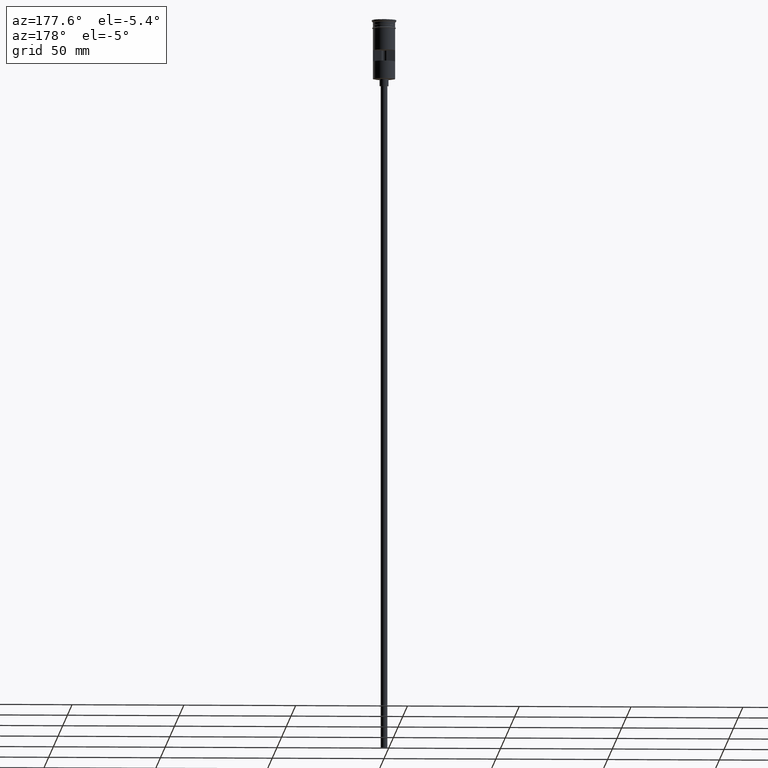
[diagram: clean part render]
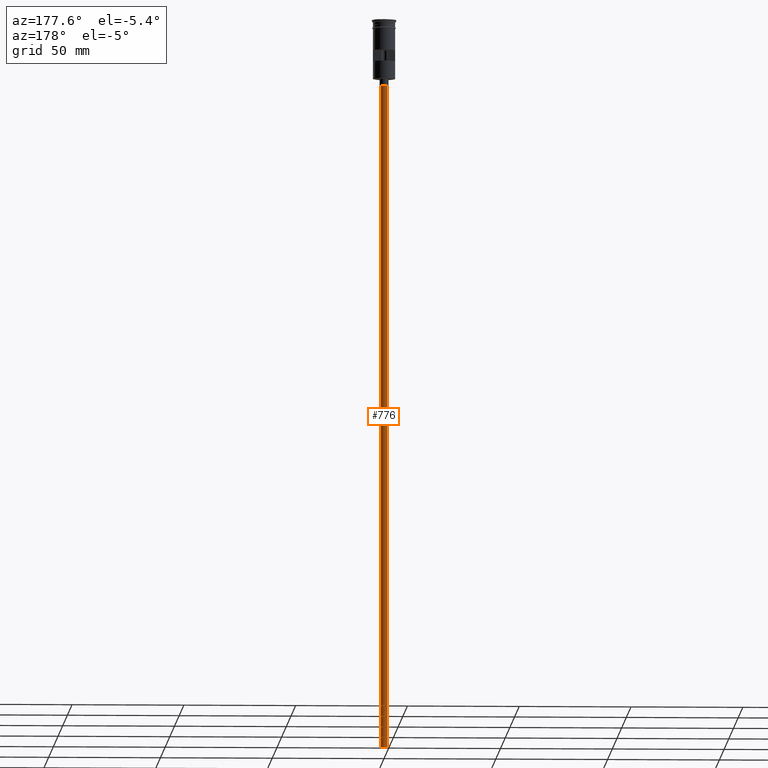
[diagram: same view with one face highlighted and labeled with its STEP entity id]
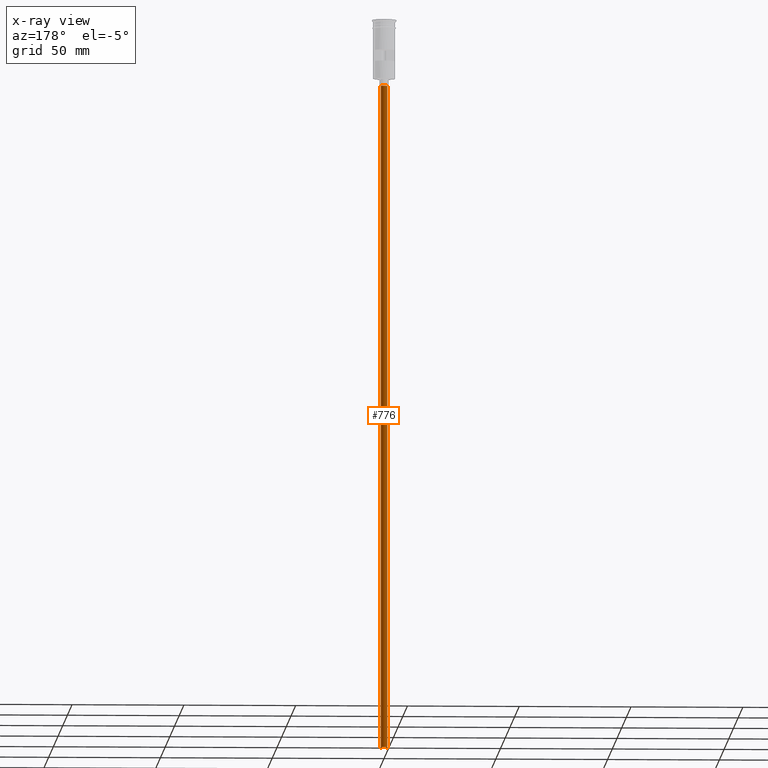
[diagram: x-ray of the same camera — body ghosted, the highlighted face saturated]
A machine part, auxiliary view. The second image highlights one B-rep face of the part: STEP entity #776.
The next image is the same camera in x-ray: the body ghosted, the highlighted face saturated — about 0% of this face is hidden behind the body in this view.
In plain terms, the highlighted cylindrical surface (edge-blend (fillet) strip) has radius 1.5 mm, axis along (-0, -0, 1).
Its self-contained STEP definition (entity closure, byte-faithful):
#17 = EDGE_CURVE ( 'NONE', #546, #990, #1414, .T. ) ;
#23 = DIRECTION ( 'NONE',  ( -0.000000000000000000, -0.000000000000000000, 1.000000000000000000 ) ) ;
#68 = CARTESIAN_POINT ( 'NONE',  ( 0.000000000000000000, 0.000000000000000000, -29.50000000000000000 ) ) ;
#240 = VERTEX_POINT ( 'NONE', #500 ) ;
#263 = ORIENTED_EDGE ( 'NONE', *, *, #352, .F. ) ;
#352 = EDGE_CURVE ( 'NONE', #1482, #240, #1040, .T. ) ;
#466 = DIRECTION ( 'NONE',  ( -1.000000000000000000, 0.000000000000000000, 0.000000000000000000 ) ) ;
#493 = DIRECTION ( 'NONE',  ( 0.000000000000000000, 0.000000000000000000, -1.000000000000000000 ) ) ;
#500 = CARTESIAN_POINT ( 'NONE',  ( 1.500000000000000222, 0.000000000000000000, -29.50000000000000000 ) ) ;
#523 = DIRECTION ( 'NONE',  ( -0.000000000000000000, -0.000000000000000000, 1.000000000000000000 ) ) ;
#546 = VERTEX_POINT ( 'NONE', #1085 ) ;
#560 = EDGE_CURVE ( 'NONE', #990, #240, #639, .T. ) ;
#639 = CIRCLE ( 'NONE', #1385, 1.500000000000000222 ) ;
#643 = ORIENTED_EDGE ( 'NONE', *, *, #17, .T. ) ;
#650 = CYLINDRICAL_SURFACE ( 'NONE', #1439, 1.500000000000000222 ) ;
#697 = DIRECTION ( 'NONE',  ( 0.000000000000000000, 0.000000000000000000, -1.000000000000000000 ) ) ;
#726 = EDGE_CURVE ( 'NONE', #546, #1482, #1212, .T. ) ;
#732 = ORIENTED_EDGE ( 'NONE', *, *, #560, .T. ) ;
#745 = VECTOR ( 'NONE', #523, 1000.000000000000000 ) ;
#776 = ADVANCED_FACE ( 'NONE', ( #1375 ), #650, .T. ) ;
#804 = CARTESIAN_POINT ( 'NONE',  ( -1.500000000000000222, 1.836970198721030181E-16, -326.5000000000000000 ) ) ;
#832 = CARTESIAN_POINT ( 'NONE',  ( 1.500000000000000222, 0.000000000000000000, -326.5000000000000000 ) ) ;
#953 = AXIS2_PLACEMENT_3D ( 'NONE', #1459, #493, #1221 ) ;
#990 = VERTEX_POINT ( 'NONE', #1208 ) ;
#1040 = LINE ( 'NONE', #1529, #1181 ) ;
#1077 = ORIENTED_EDGE ( 'NONE', *, *, #726, .F. ) ;
#1085 = CARTESIAN_POINT ( 'NONE',  ( -1.500000000000000222, 1.836970198721030181E-16, -326.5000000000000000 ) ) ;
#1181 = VECTOR ( 'NONE', #1376, 1000.000000000000000 ) ;
#1208 = CARTESIAN_POINT ( 'NONE',  ( -1.500000000000000222, 1.836970198721030181E-16, -29.50000000000000000 ) ) ;
#1212 = CIRCLE ( 'NONE', #953, 1.500000000000000222 ) ;
#1221 = DIRECTION ( 'NONE',  ( -1.000000000000000000, 0.000000000000000000, 0.000000000000000000 ) ) ;
#1346 = EDGE_LOOP ( 'NONE', ( #1077, #643, #732, #263 ) ) ;
#1369 = DIRECTION ( 'NONE',  ( 1.000000000000000000, 0.000000000000000000, 0.000000000000000000 ) ) ;
#1375 = FACE_OUTER_BOUND ( 'NONE', #1346, .T. ) ;
#1376 = DIRECTION ( 'NONE',  ( -0.000000000000000000, -0.000000000000000000, 1.000000000000000000 ) ) ;
#1385 = AXIS2_PLACEMENT_3D ( 'NONE', #68, #697, #466 ) ;
#1414 = LINE ( 'NONE', #804, #745 ) ;
#1424 = CARTESIAN_POINT ( 'NONE',  ( 0.000000000000000000, 0.000000000000000000, -326.5000000000000000 ) ) ;
#1439 = AXIS2_PLACEMENT_3D ( 'NONE', #1424, #23, #1369 ) ;
#1459 = CARTESIAN_POINT ( 'NONE',  ( 0.000000000000000000, 0.000000000000000000, -326.5000000000000000 ) ) ;
#1482 = VERTEX_POINT ( 'NONE', #832 ) ;
#1529 = CARTESIAN_POINT ( 'NONE',  ( 1.500000000000000222, 0.000000000000000000, -326.5000000000000000 ) ) ;